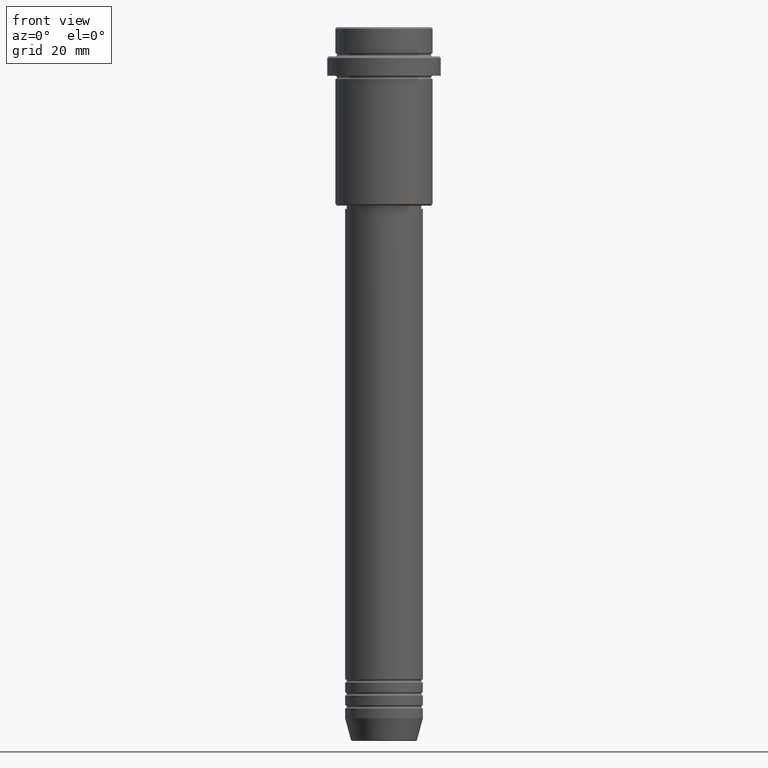
[diagram: clean part render]
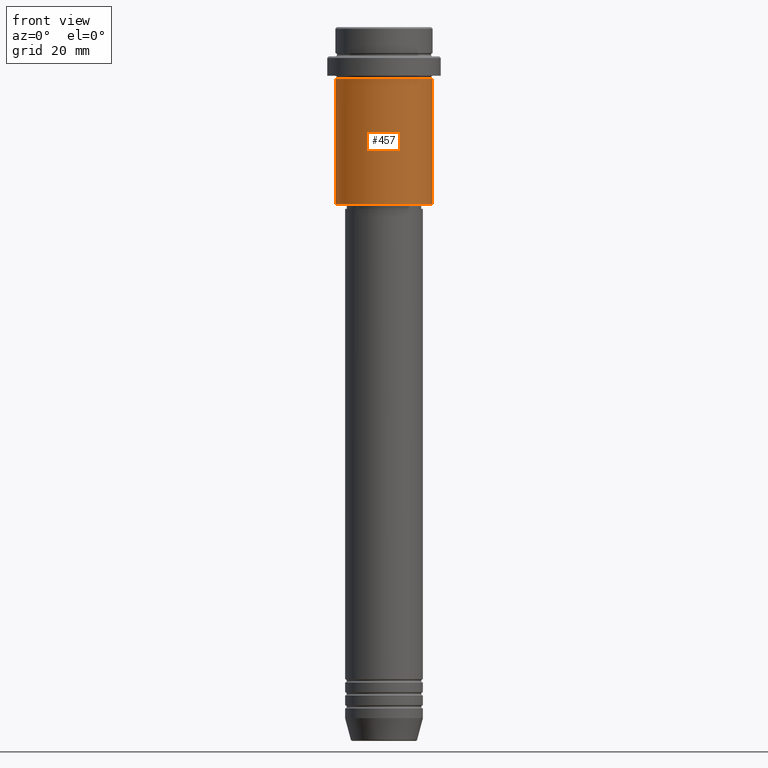
[diagram: same view with one face highlighted and labeled with its STEP entity id]
A machine part, front view. The second image highlights one B-rep face of the part: STEP entity #457.
In plain terms, the highlighted cylindrical surface (partial cylindrical patch) has radius 15 mm, axis along (-0, -0, 1).
Its self-contained STEP definition (entity closure, byte-faithful):
#23 = CARTESIAN_POINT ( 'NONE',  ( 0.000000000000000000, 0.000000000000000000, -54.50000000000003553 ) ) ;
#38 = DIRECTION ( 'NONE',  ( -1.000000000000000000, 0.000000000000000000, 0.000000000000000000 ) ) ;
#64 = LINE ( 'NONE', #501, #1396 ) ;
#90 = LINE ( 'NONE', #1169, #567 ) ;
#123 = DIRECTION ( 'NONE',  ( 1.000000000000000000, 0.000000000000000000, 0.000000000000000000 ) ) ;
#138 = EDGE_CURVE ( 'NONE', #1099, #1364, #64, .T. ) ;
#169 = CIRCLE ( 'NONE', #714, 15.00000000000000178 ) ;
#262 = DIRECTION ( 'NONE',  ( -0.000000000000000000, -0.000000000000000000, 1.000000000000000000 ) ) ;
#457 = ADVANCED_FACE ( 'NONE', ( #671 ), #467, .T. ) ;
#459 = CIRCLE ( 'NONE', #979, 15.00000000000000000 ) ;
#467 = CYLINDRICAL_SURFACE ( 'NONE', #1109, 15.00000000000000000 ) ;
#476 = EDGE_CURVE ( 'NONE', #1215, #1059, #90, .T. ) ;
#501 = CARTESIAN_POINT ( 'NONE',  ( 15.00000000000000000, 0.000000000000000000, 0.000000000000000000 ) ) ;
#567 = VECTOR ( 'NONE', #730, 1000.000000000000000 ) ;
#650 = DIRECTION ( 'NONE',  ( -0.000000000000000000, -0.000000000000000000, 1.000000000000000000 ) ) ;
#663 = EDGE_CURVE ( 'NONE', #1215, #1099, #459, .T. ) ;
#671 = FACE_OUTER_BOUND ( 'NONE', #1120, .T. ) ;
#711 = EDGE_CURVE ( 'NONE', #1059, #1364, #169, .T. ) ;
#714 = AXIS2_PLACEMENT_3D ( 'NONE', #1411, #1194, #123 ) ;
#730 = DIRECTION ( 'NONE',  ( -0.000000000000000000, -0.000000000000000000, 1.000000000000000000 ) ) ;
#799 = ORIENTED_EDGE ( 'NONE', *, *, #663, .T. ) ;
#893 = CARTESIAN_POINT ( 'NONE',  ( 15.00000000000000178, 0.000000000000000000, -16.00000000000000000 ) ) ;
#934 = CARTESIAN_POINT ( 'NONE',  ( 15.00000000000000000, 0.000000000000000000, -54.50000000000003553 ) ) ;
#979 = AXIS2_PLACEMENT_3D ( 'NONE', #23, #650, #38 ) ;
#984 = DIRECTION ( 'NONE',  ( 1.000000000000000000, 0.000000000000000000, 0.000000000000000000 ) ) ;
#1011 = ORIENTED_EDGE ( 'NONE', *, *, #138, .T. ) ;
#1059 = VERTEX_POINT ( 'NONE', #1379 ) ;
#1099 = VERTEX_POINT ( 'NONE', #934 ) ;
#1109 = AXIS2_PLACEMENT_3D ( 'NONE', #1221, #262, #984 ) ;
#1120 = EDGE_LOOP ( 'NONE', ( #1311, #799, #1011, #1380 ) ) ;
#1169 = CARTESIAN_POINT ( 'NONE',  ( -15.00000000000000000, 1.836970198721029589E-15, 0.000000000000000000 ) ) ;
#1194 = DIRECTION ( 'NONE',  ( -0.000000000000000000, -0.000000000000000000, 1.000000000000000000 ) ) ;
#1215 = VERTEX_POINT ( 'NONE', #1413 ) ;
#1221 = CARTESIAN_POINT ( 'NONE',  ( 0.000000000000000000, 0.000000000000000000, 0.000000000000000000 ) ) ;
#1241 = DIRECTION ( 'NONE',  ( -0.000000000000000000, -0.000000000000000000, 1.000000000000000000 ) ) ;
#1311 = ORIENTED_EDGE ( 'NONE', *, *, #476, .F. ) ;
#1364 = VERTEX_POINT ( 'NONE', #893 ) ;
#1379 = CARTESIAN_POINT ( 'NONE',  ( -15.00000000000000355, 1.836970198721029983E-15, -16.00000000000000000 ) ) ;
#1380 = ORIENTED_EDGE ( 'NONE', *, *, #711, .F. ) ;
#1396 = VECTOR ( 'NONE', #1241, 1000.000000000000000 ) ;
#1411 = CARTESIAN_POINT ( 'NONE',  ( 0.000000000000000000, 0.000000000000000000, -16.00000000000000000 ) ) ;
#1413 = CARTESIAN_POINT ( 'NONE',  ( -15.00000000000000000, 1.836970198721029589E-15, -54.50000000000003553 ) ) ;